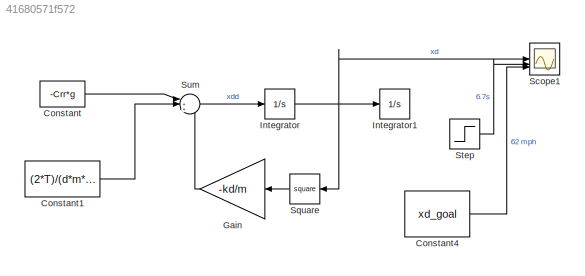
MODEL slx_41680571f572
KIND model
CONFIG AbsTol = auto
CONFIG EnableMultiTasking = off
CONFIG FixedStep = auto
CONFIG MaxStep = auto
CONFIG MinStep = auto
CONFIG RelTol = 1e-3
CONFIG SampleTimeConstraint = Unconstrained
CONFIG SolverName = VariableStepAuto
CONFIG StartTime = 0.0
CONFIG StopTime = 7
BLOCK [Constant] Constant
  Value = -Crr*g
BLOCK [Constant] Constant1
  Value = (2*T)/(d*m*i)
BLOCK [Constant] Constant4
  Value = xd_goal
BLOCK [Gain] Gain
  Gain = -kd/m
BLOCK [Integrator] Integrator
  InitialCondition = xd0
BLOCK [Integrator] Integrator1
BLOCK [Scope] Scope1
  Floating = off
  NumInputPorts = 3
  ScopeSpecificationString = Simulink.scopes.TimeScopeBlockCfg('CurrentConfiguration', extmgr.ConfigurationSet(extmgr.Configuration('Core','General UI',true),extmgr.Configuration('Core','Source UI',true),extmgr.Configuration('Sources','WiredSimulink',true,'DataLoggingVariableName','ScopeData1'),extmgr.Configuration('Visuals','Time Domain',true,'SerializedDisplays',{struct('MinYLimReal','-5.57474','MaxYLimReal','50.17263','YLa...<+1408ch>
BLOCK [Math] Square
  Operator = square
BLOCK [Step] Step
  After = xd_goal
  SampleTime = 0
  Time = t_goal
BLOCK [Sum] Sum
  Inputs = |+++
LINE Constant1:1 -> Sum:2
LINE Constant4:1 -> Scope1:3
LINE Constant:1 -> Sum:1
LINE Gain:1 -> Sum:3
NET Integrator:1 -> Integrator1:1, Scope1:1, Square:1
LINE Square:1 -> Gain:1
LINE Step:1 -> Scope1:2
LINE Sum:1 -> Integrator:1
note: NET lines group one-source signal fan-out (src -> all destinations, sorted); 1:1 wires keep LINE
